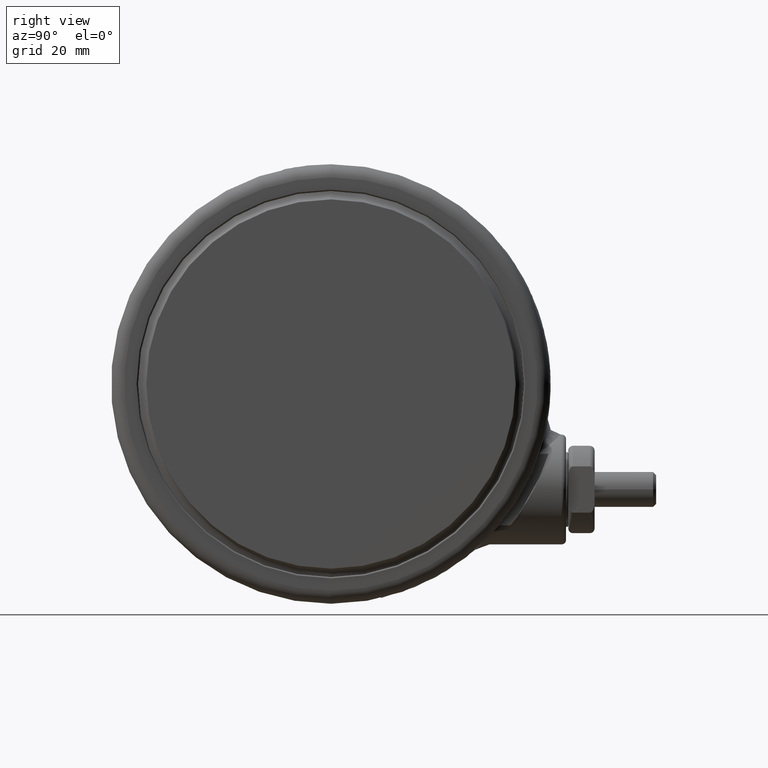
[diagram: clean part render]
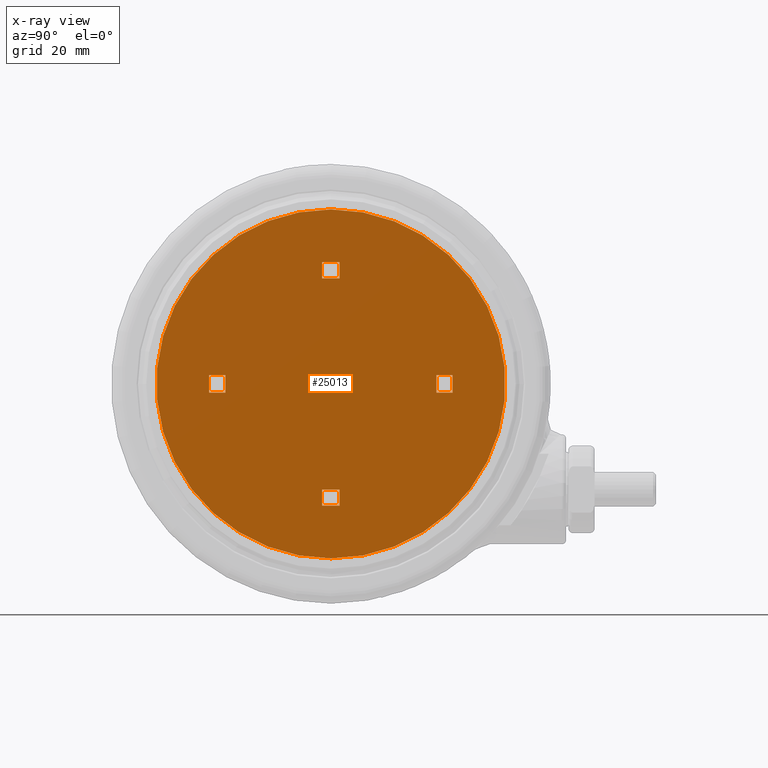
[diagram: x-ray — body ghosted, one internal face saturated and labeled with its STEP entity id]
A machine part, right view, then the same camera in x-ray: the body is ghosted and one INTERNAL B-rep face — a face not visible from any outside direction — is saturated and labeled: STEP entity #25013.
In plain terms, the highlighted planar face has unit normal (-1, 0, 0).
Its self-contained STEP definition (entity closure, byte-faithful):
#136 = VECTOR ( 'NONE', #12596, 1000.000000000000000 ) ;
#159 = CARTESIAN_POINT ( 'NONE',  ( 2.000000000000000000, 1.162309236972380500E-015, -46.79999999999990500 ) ) ;
#1125 = VECTOR ( 'NONE', #26517, 1000.000000000000000 ) ;
#1350 = EDGE_CURVE ( 'NONE', #6057, #29366, #11666, .T. ) ;
#1412 = CARTESIAN_POINT ( 'NONE',  ( -2.000000000000000000, 1.338847513585790800E-015, -46.79999999999990500 ) ) ;
#1554 = VERTEX_POINT ( 'NONE', #25778 ) ;
#1797 = DIRECTION ( 'NONE',  ( -1.000000000000000000, 4.413456915335259200E-017, 4.709952866388670900E-033 ) ) ;
#1863 = EDGE_CURVE ( 'NONE', #13724, #24237, #16701, .T. ) ;
#2639 = EDGE_CURVE ( 'NONE', #24237, #10048, #27189, .T. ) ;
#2650 = LINE ( 'NONE', #13982, #15932 ) ;
#2779 = EDGE_CURVE ( 'NONE', #8968, #21435, #24862, .T. ) ;
#2790 = CARTESIAN_POINT ( 'NONE',  ( 7.396492467738625300E-015, 2.000000000000001800, -46.79999999999990500 ) ) ;
#3126 = AXIS2_PLACEMENT_3D ( 'NONE', #3632, #21103, #6130 ) ;
#3328 = CARTESIAN_POINT ( 'NONE',  ( 27.69999999999999900, -2.000000000000094600, -46.79999999999990500 ) ) ;
#3632 = CARTESIAN_POINT ( 'NONE',  ( 1.465618459832179300E-033, 1.575839027024737700E-015, -46.79999999999990500 ) ) ;
#3929 = VERTEX_POINT ( 'NONE', #5197 ) ;
#3939 = DIRECTION ( 'NONE',  ( -1.000000000000000000, 3.535615907996487800E-015, 1.807003620809178100E-016 ) ) ;
#4138 = VECTOR ( 'NONE', #12550, 1000.000000000000000 ) ;
#4188 = CARTESIAN_POINT ( 'NONE',  ( 39.69999999999999600, 4.681568813233502500E-015, -46.79999999999990500 ) ) ;
#4260 = LINE ( 'NONE', #8237, #30882 ) ;
#4303 = EDGE_CURVE ( 'NONE', #6057, #12682, #13865, .T. ) ;
#4566 = VECTOR ( 'NONE', #7166, 1000.000000000000000 ) ;
#5007 = CARTESIAN_POINT ( 'NONE',  ( 27.70000000000000300, 40.50000000000000000, -46.79999999999990500 ) ) ;
#5197 = CARTESIAN_POINT ( 'NONE',  ( -24.00000000000000000, 2.000000000000252200, -46.79999999999990500 ) ) ;
#5431 = AXIS2_PLACEMENT_3D ( 'NONE', #7971, #25447, #10484 ) ;
#5690 = ORIENTED_EDGE ( 'NONE', *, *, #21311, .F. ) ;
#5742 = AXIS2_PLACEMENT_3D ( 'NONE', #29042, #14060, #31555 ) ;
#5894 = ORIENTED_EDGE ( 'NONE', *, *, #1863, .T. ) ;
#6057 = VERTEX_POINT ( 'NONE', #17421 ) ;
#6130 = DIRECTION ( 'NONE',  ( -1.000000000000000000, 4.413456915335259200E-017, 0.0000000000000000000 ) ) ;
#6342 = CARTESIAN_POINT ( 'NONE',  ( 1.999999999999999100, -24.00000000000000000, -46.79999999999991200 ) ) ;
#6726 = FACE_BOUND ( 'NONE', #10776, .T. ) ;
#7057 = VECTOR ( 'NONE', #1797, 1000.000000000000000 ) ;
#7166 = DIRECTION ( 'NONE',  ( 3.535615907996487800E-015, 1.000000000000000000, 8.826913830670518300E-017 ) ) ;
#7167 = VECTOR ( 'NONE', #10502, 1000.000000000000000 ) ;
#7228 = CARTESIAN_POINT ( 'NONE',  ( -27.69999999999999900, 2.000000000000293100, -46.79999999999990500 ) ) ;
#7449 = LINE ( 'NONE', #159, #14092 ) ;
#7971 = CARTESIAN_POINT ( 'NONE',  ( 1.465618459832179300E-033, 1.575839027024737700E-015, -46.79999999999990500 ) ) ;
#8195 = VECTOR ( 'NONE', #16225, 1000.000000000000000 ) ;
#8237 = CARTESIAN_POINT ( 'NONE',  ( 2.071189651961985400E-014, 2.000000000000001800, -46.79999999999990500 ) ) ;
#8574 = ORIENTED_EDGE ( 'NONE', *, *, #21048, .T. ) ;
#8700 = EDGE_CURVE ( 'NONE', #16875, #10048, #7449, .T. ) ;
#8968 = VERTEX_POINT ( 'NONE', #9174 ) ;
#9174 = CARTESIAN_POINT ( 'NONE',  ( 27.69999999999999900, 1.999999999999905400, -46.79999999999990500 ) ) ;
#9528 = CARTESIAN_POINT ( 'NONE',  ( -2.136241782311115700E-014, -1.999999999999998200, -46.79999999999990500 ) ) ;
#9738 = EDGE_CURVE ( 'NONE', #29366, #3929, #4260, .T. ) ;
#9907 = CIRCLE ( 'NONE', #3126, 39.69999999999999600 ) ;
#10048 = VERTEX_POINT ( 'NONE', #11912 ) ;
#10484 = DIRECTION ( 'NONE',  ( -1.000000000000000000, 4.413456915335259200E-017, 0.0000000000000000000 ) ) ;
#10502 = DIRECTION ( 'NONE',  ( -1.051857858568275400E-014, -1.000000000000000000, -8.826913830670518300E-017 ) ) ;
#10776 = EDGE_LOOP ( 'NONE', ( #21252, #14832, #16316, #5690 ) ) ;
#10789 = EDGE_CURVE ( 'NONE', #21435, #13804, #2650, .T. ) ;
#10960 = ORIENTED_EDGE ( 'NONE', *, *, #8700, .F. ) ;
#11612 = VERTEX_POINT ( 'NONE', #22455 ) ;
#11666 = LINE ( 'NONE', #14841, #13248 ) ;
#11912 = CARTESIAN_POINT ( 'NONE',  ( 1.999999999999999100, -24.00000000000000000, -46.79999999999991200 ) ) ;
#12102 = EDGE_CURVE ( 'NONE', #1554, #11612, #14810, .T. ) ;
#12346 = ORIENTED_EDGE ( 'NONE', *, *, #4303, .F. ) ;
#12550 = DIRECTION ( 'NONE',  ( -3.535615907996487800E-015, -1.000000000000000000, -8.826913830670518300E-017 ) ) ;
#12596 = DIRECTION ( 'NONE',  ( -4.413456915335259200E-017, -1.000000000000000000, 9.243122377421230500E-017 ) ) ;
#12607 = FACE_OUTER_BOUND ( 'NONE', #31413, .T. ) ;
#12682 = VERTEX_POINT ( 'NONE', #20890 ) ;
#13248 = VECTOR ( 'NONE', #19880, 1000.000000000000000 ) ;
#13517 = EDGE_LOOP ( 'NONE', ( #27104, #8574, #26958, #14122 ) ) ;
#13715 = CARTESIAN_POINT ( 'NONE',  ( 1.222527565547866700E-015, 27.70000000000000300, -46.79999999999990500 ) ) ;
#13724 = VERTEX_POINT ( 'NONE', #27632 ) ;
#13804 = VERTEX_POINT ( 'NONE', #25676 ) ;
#13865 = LINE ( 'NONE', #9528, #25601 ) ;
#13913 = VECTOR ( 'NONE', #18807, 1000.000000000000000 ) ;
#13982 = CARTESIAN_POINT ( 'NONE',  ( -6.745971164247315500E-015, -1.999999999999998200, -46.79999999999990500 ) ) ;
#14037 = CARTESIAN_POINT ( 'NONE',  ( 2.000000000000000000, 1.812830540463684800E-015, -46.79999999999990500 ) ) ;
#14060 = DIRECTION ( 'NONE',  ( -8.142324776845467900E-034, 8.826913830670518300E-017, -1.000000000000000000 ) ) ;
#14073 = ORIENTED_EDGE ( 'NONE', *, *, #9738, .T. ) ;
#14092 = VECTOR ( 'NONE', #17492, 1000.000000000000000 ) ;
#14122 = ORIENTED_EDGE ( 'NONE', *, *, #17103, .F. ) ;
#14176 = EDGE_CURVE ( 'NONE', #13804, #19782, #17878, .T. ) ;
#14711 = VECTOR ( 'NONE', #18632, 1000.000000000000000 ) ;
#14810 = LINE ( 'NONE', #13715, #8195 ) ;
#14832 = ORIENTED_EDGE ( 'NONE', *, *, #10789, .T. ) ;
#14841 = CARTESIAN_POINT ( 'NONE',  ( -27.69999999999959800, 40.50000000000000000, -46.79999999999990500 ) ) ;
#14871 = ORIENTED_EDGE ( 'NONE', *, *, #16317, .T. ) ;
#15257 = CARTESIAN_POINT ( 'NONE',  ( 1.999999999999998700, -27.69999999999999600, -46.79999999999991200 ) ) ;
#15932 = VECTOR ( 'NONE', #3939, 1000.000000000000000 ) ;
#16182 = ORIENTED_EDGE ( 'NONE', *, *, #24397, .T. ) ;
#16198 = CARTESIAN_POINT ( 'NONE',  ( -2.000000000000000900, -24.00000000000000000, -46.79999999999991200 ) ) ;
#16225 = DIRECTION ( 'NONE',  ( 1.000000000000000000, -4.413456915335259200E-017, -4.709952866388670900E-033 ) ) ;
#16316 = ORIENTED_EDGE ( 'NONE', *, *, #14176, .T. ) ;
#16317 = EDGE_CURVE ( 'NONE', #3929, #12682, #27098, .T. ) ;
#16540 = DIRECTION ( 'NONE',  ( -4.413456915335259200E-017, -1.000000000000000000, 9.243122377421230500E-017 ) ) ;
#16701 = LINE ( 'NONE', #1412, #1125 ) ;
#16875 = VERTEX_POINT ( 'NONE', #15257 ) ;
#16890 = VERTEX_POINT ( 'NONE', #28675 ) ;
#17103 = EDGE_CURVE ( 'NONE', #1554, #16890, #31765, .T. ) ;
#17421 = CARTESIAN_POINT ( 'NONE',  ( -27.69999999999999900, -1.999999999999706900, -46.79999999999990500 ) ) ;
#17492 = DIRECTION ( 'NONE',  ( 4.413456915335259200E-017, 1.000000000000000000, 2.689695003876226800E-016 ) ) ;
#17850 = EDGE_CURVE ( 'NONE', #25224, #29230, #26254, .T. ) ;
#17878 = LINE ( 'NONE', #19725, #4566 ) ;
#18359 = LINE ( 'NONE', #14037, #30883 ) ;
#18632 = DIRECTION ( 'NONE',  ( -1.000000000000000000, 4.413456915335259200E-017, 4.709952866388670900E-033 ) ) ;
#18807 = DIRECTION ( 'NONE',  ( 1.000000000000000000, -4.413456915335259200E-017, -4.709952866388670900E-033 ) ) ;
#19244 = FACE_BOUND ( 'NONE', #26711, .T. ) ;
#19688 = EDGE_CURVE ( 'NONE', #32399, #16890, #26999, .T. ) ;
#19725 = CARTESIAN_POINT ( 'NONE',  ( 24.00000000000000000, 1.999999999999915800, -46.79999999999990500 ) ) ;
#19782 = VERTEX_POINT ( 'NONE', #20469 ) ;
#19880 = DIRECTION ( 'NONE',  ( 1.051857858568275400E-014, 1.000000000000000000, 8.826913830670518300E-017 ) ) ;
#20037 = FACE_BOUND ( 'NONE', #32215, .T. ) ;
#20262 = DIRECTION ( 'NONE',  ( -1.000000000000000000, 3.535615907996487800E-015, 1.807003620809178100E-016 ) ) ;
#20469 = CARTESIAN_POINT ( 'NONE',  ( 24.00000000000000000, 1.999999999999915800, -46.79999999999990500 ) ) ;
#20890 = CARTESIAN_POINT ( 'NONE',  ( -24.00000000000000000, -1.999999999999747500, -46.79999999999990500 ) ) ;
#21048 = EDGE_CURVE ( 'NONE', #11612, #32399, #18359, .T. ) ;
#21103 = DIRECTION ( 'NONE',  ( 8.142324776845440500E-034, -8.826913830670518300E-017, 1.000000000000000000 ) ) ;
#21252 = ORIENTED_EDGE ( 'NONE', *, *, #2779, .T. ) ;
#21311 = EDGE_CURVE ( 'NONE', #8968, #19782, #29663, .T. ) ;
#21435 = VERTEX_POINT ( 'NONE', #3328 ) ;
#22249 = ORIENTED_EDGE ( 'NONE', *, *, #1350, .T. ) ;
#22455 = CARTESIAN_POINT ( 'NONE',  ( 2.000000000000001300, 27.70000000000000300, -46.79999999999990500 ) ) ;
#22858 = ORIENTED_EDGE ( 'NONE', *, *, #2639, .T. ) ;
#24007 = PLANE ( 'NONE',  #5742 ) ;
#24237 = VERTEX_POINT ( 'NONE', #16198 ) ;
#24397 = EDGE_CURVE ( 'NONE', #29230, #25224, #9907, .T. ) ;
#24568 = VECTOR ( 'NONE', #20262, 1000.000000000000000 ) ;
#24862 = LINE ( 'NONE', #5007, #4138 ) ;
#25013 = ADVANCED_FACE ( 'NONE', ( #19244, #20037, #6726, #25916, #12607 ), #24007, .F. ) ;
#25224 = VERTEX_POINT ( 'NONE', #32303 ) ;
#25447 = DIRECTION ( 'NONE',  ( 8.142324776845440500E-034, -8.826913830670518300E-017, 1.000000000000000000 ) ) ;
#25601 = VECTOR ( 'NONE', #26996, 1000.000000000000000 ) ;
#25676 = CARTESIAN_POINT ( 'NONE',  ( 24.00000000000000000, -2.000000000000084400, -46.79999999999990500 ) ) ;
#25709 = DIRECTION ( 'NONE',  ( 1.000000000000000000, -1.051857858568275400E-014, 1.807003620809165500E-016 ) ) ;
#25778 = CARTESIAN_POINT ( 'NONE',  ( -1.999999999999998700, 27.70000000000000300, -46.79999999999990500 ) ) ;
#25916 = FACE_BOUND ( 'NONE', #13517, .T. ) ;
#26033 = ORIENTED_EDGE ( 'NONE', *, *, #17850, .T. ) ;
#26254 = CIRCLE ( 'NONE', #5431, 39.69999999999999600 ) ;
#26517 = DIRECTION ( 'NONE',  ( 4.413456915335259200E-017, 1.000000000000000000, 2.689695003876226800E-016 ) ) ;
#26711 = EDGE_LOOP ( 'NONE', ( #22249, #14073, #14871, #12346 ) ) ;
#26958 = ORIENTED_EDGE ( 'NONE', *, *, #19688, .T. ) ;
#26996 = DIRECTION ( 'NONE',  ( 1.000000000000000000, -1.051857858568275400E-014, 1.807003620809165500E-016 ) ) ;
#26999 = LINE ( 'NONE', #31733, #7057 ) ;
#27098 = LINE ( 'NONE', #30517, #7167 ) ;
#27104 = ORIENTED_EDGE ( 'NONE', *, *, #12102, .T. ) ;
#27189 = LINE ( 'NONE', #6342, #13913 ) ;
#27545 = CARTESIAN_POINT ( 'NONE',  ( -2.000000000000000000, 1.989368817077094900E-015, -46.79999999999990500 ) ) ;
#27632 = CARTESIAN_POINT ( 'NONE',  ( -2.000000000000001300, -27.69999999999999600, -46.79999999999991200 ) ) ;
#28016 = LINE ( 'NONE', #31095, #14711 ) ;
#28675 = CARTESIAN_POINT ( 'NONE',  ( -1.999999999999999100, 24.00000000000000000, -46.79999999999990500 ) ) ;
#29042 = CARTESIAN_POINT ( 'NONE',  ( 1.787450050710780100E-015, 40.50000000000000000, -46.79999999999990500 ) ) ;
#29095 = ORIENTED_EDGE ( 'NONE', *, *, #32282, .T. ) ;
#29230 = VERTEX_POINT ( 'NONE', #4188 ) ;
#29366 = VERTEX_POINT ( 'NONE', #7228 ) ;
#29663 = LINE ( 'NONE', #2790, #24568 ) ;
#30517 = CARTESIAN_POINT ( 'NONE',  ( -24.00000000000000000, -1.999999999999747500, -46.79999999999990500 ) ) ;
#30882 = VECTOR ( 'NONE', #25709, 1000.000000000000000 ) ;
#30883 = VECTOR ( 'NONE', #16540, 1000.000000000000000 ) ;
#31095 = CARTESIAN_POINT ( 'NONE',  ( -1.222527565547866700E-015, -27.69999999999999600, -46.79999999999991200 ) ) ;
#31413 = EDGE_LOOP ( 'NONE', ( #26033, #16182 ) ) ;
#31495 = CARTESIAN_POINT ( 'NONE',  ( 2.000000000000000900, 24.00000000000000000, -46.79999999999990500 ) ) ;
#31555 = DIRECTION ( 'NONE',  ( -1.000000000000000000, 4.413456915335259200E-017, 4.709952866388670900E-033 ) ) ;
#31733 = CARTESIAN_POINT ( 'NONE',  ( -1.999999999999999100, 24.00000000000000000, -46.79999999999990500 ) ) ;
#31765 = LINE ( 'NONE', #27545, #136 ) ;
#32215 = EDGE_LOOP ( 'NONE', ( #29095, #5894, #22858, #10960 ) ) ;
#32282 = EDGE_CURVE ( 'NONE', #16875, #13724, #28016, .T. ) ;
#32303 = CARTESIAN_POINT ( 'NONE',  ( -39.69999999999999600, 3.327981422412835400E-015, -46.79999999999990500 ) ) ;
#32399 = VERTEX_POINT ( 'NONE', #31495 ) ;